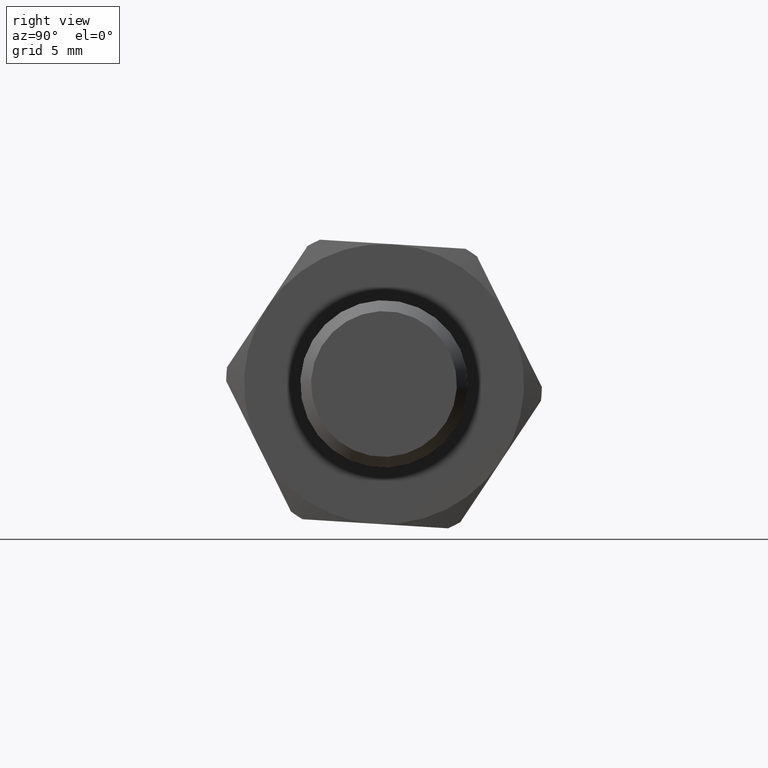
[diagram: clean part render]
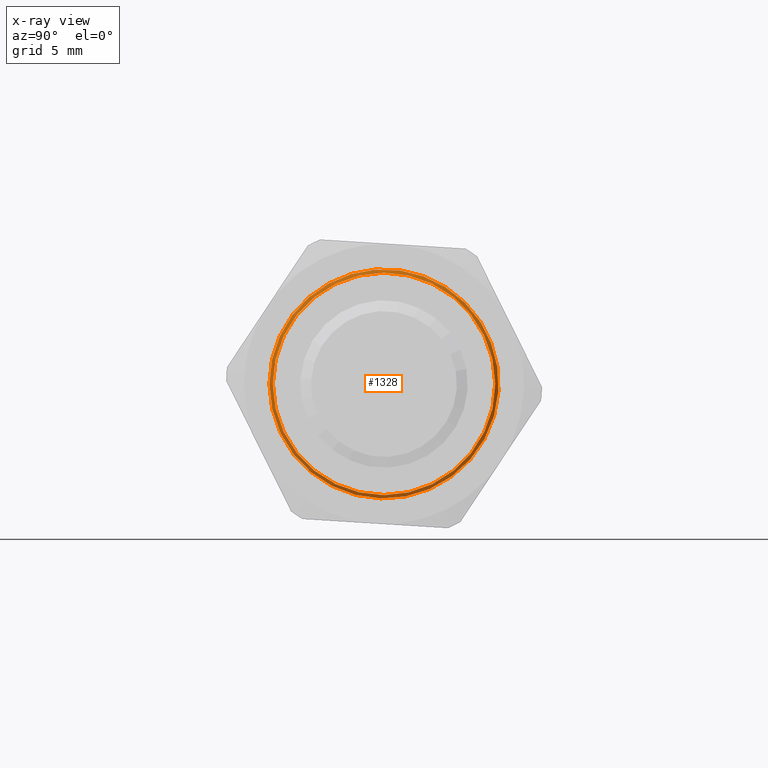
[diagram: x-ray — body ghosted, one internal face saturated and labeled with its STEP entity id]
A machine part, right view, then the same camera in x-ray: the body is ghosted and one INTERNAL B-rep face — a face not visible from any outside direction — is saturated and labeled: STEP entity #1328.
In plain terms, the highlighted conical surface has half-angle 45 deg.
Its self-contained STEP definition (entity closure, byte-faithful):
#1286=CARTESIAN_POINT('',(23.000000000000007,8.982419768858422,-0.562258922580531));
#1287=VERTEX_POINT('',#1286);
#1288=CARTESIAN_POINT('',(23.0,0.0,0.0));
#1289=DIRECTION('',(1.000000000000000,0.0,0.0));
#1290=DIRECTION('',(0.0,-0.998046640984269,0.062473213620059));
#1291=AXIS2_PLACEMENT_3D('',#1288,#1289,#1290);
#1292=CIRCLE('',#1291,9.000000000000009);
#1293=EDGE_CURVE('',#1287,#1287,#1292,.T.);
#1309=CARTESIAN_POINT('',(23.250000000000007,0.0,0.0));
#1310=DIRECTION('',(-1.0,0.0,0.0));
#1311=DIRECTION('',(0.0,-0.998046640984269,0.062473213620059));
#1312=AXIS2_PLACEMENT_3D('',#1309,#1310,#1311);
#1313=CONICAL_SURFACE('',#1312,8.750000000000002,45.000000000000135);
#1314=CARTESIAN_POINT('',(23.264524702110773,-8.735475297889234,-1.069787E-015));
#1315=VERTEX_POINT('',#1314);
#1316=CARTESIAN_POINT('',(23.264524702110773,0.0,0.0));
#1317=DIRECTION('',(1.0,0.0,0.0));
#1318=DIRECTION('',(0.0,1.0,0.0));
#1319=AXIS2_PLACEMENT_3D('',#1316,#1317,#1318);
#1320=CIRCLE('',#1319,8.735475297889234);
#1321=EDGE_CURVE('',#1315,#1315,#1320,.T.);
#1322=ORIENTED_EDGE('',*,*,#1321,.T.);
#1323=EDGE_LOOP('',(#1322));
#1324=FACE_OUTER_BOUND('',#1323,.T.);
#1325=ORIENTED_EDGE('',*,*,#1293,.F.);
#1326=EDGE_LOOP('',(#1325));
#1327=FACE_BOUND('',#1326,.T.);
#1328=ADVANCED_FACE('',(#1324,#1327),#1313,.F.);